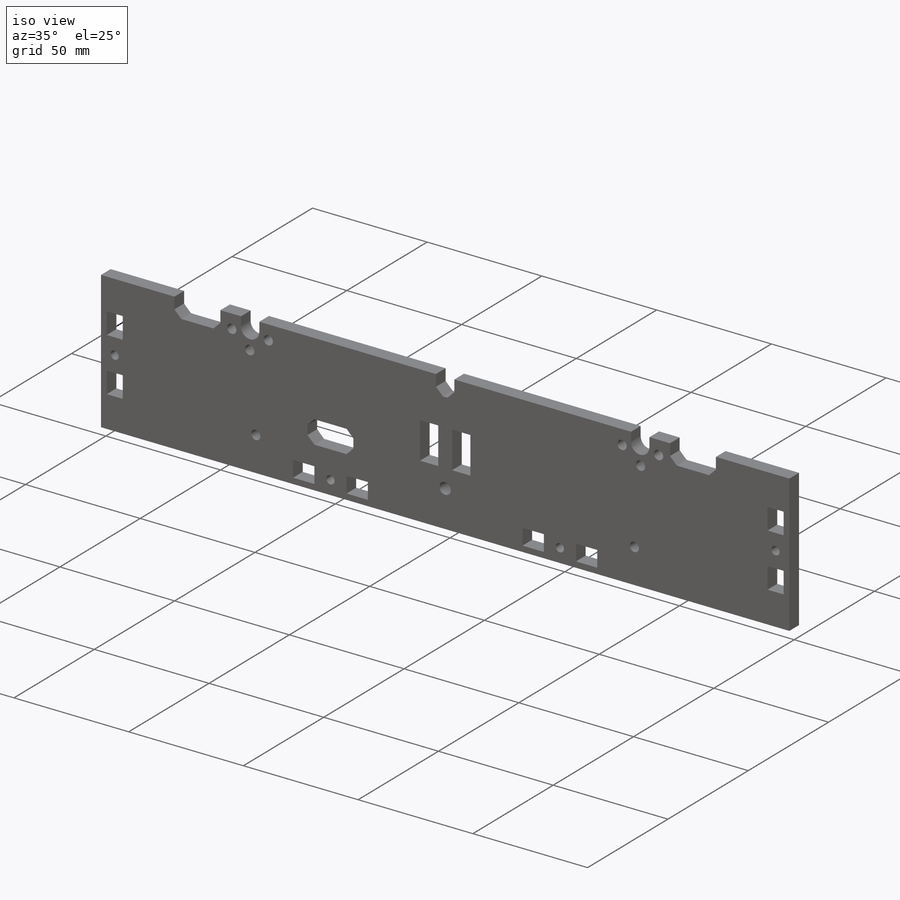
[diagram: iso view]
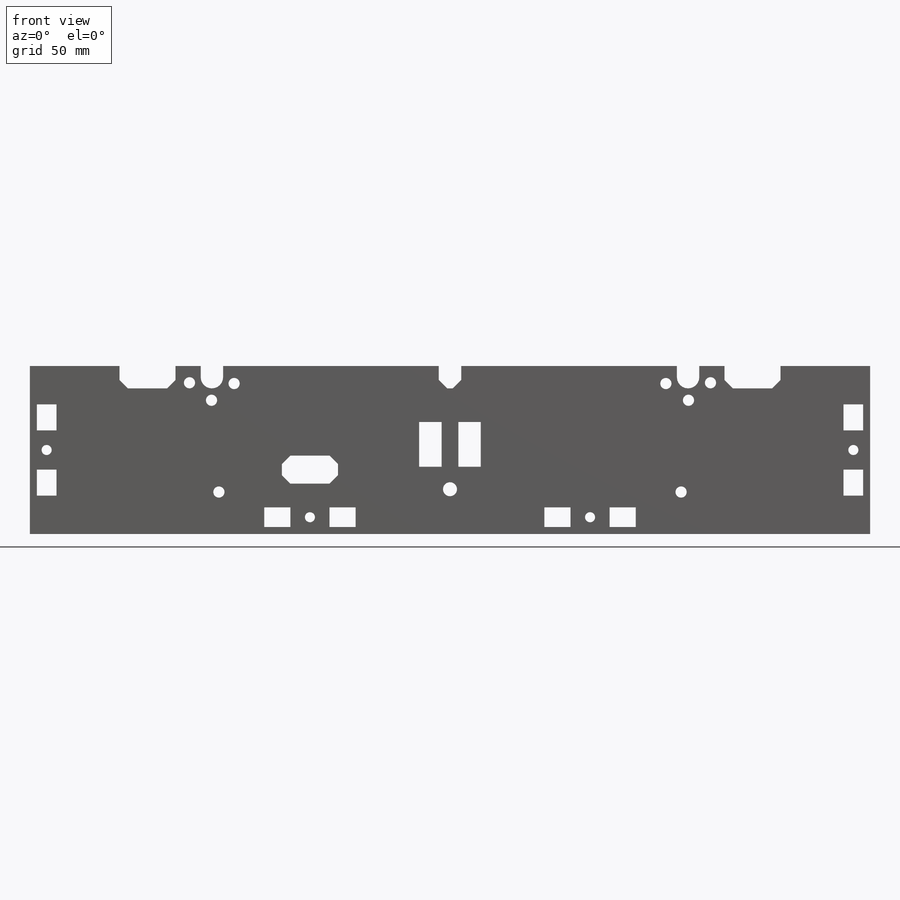
[diagram: front view]
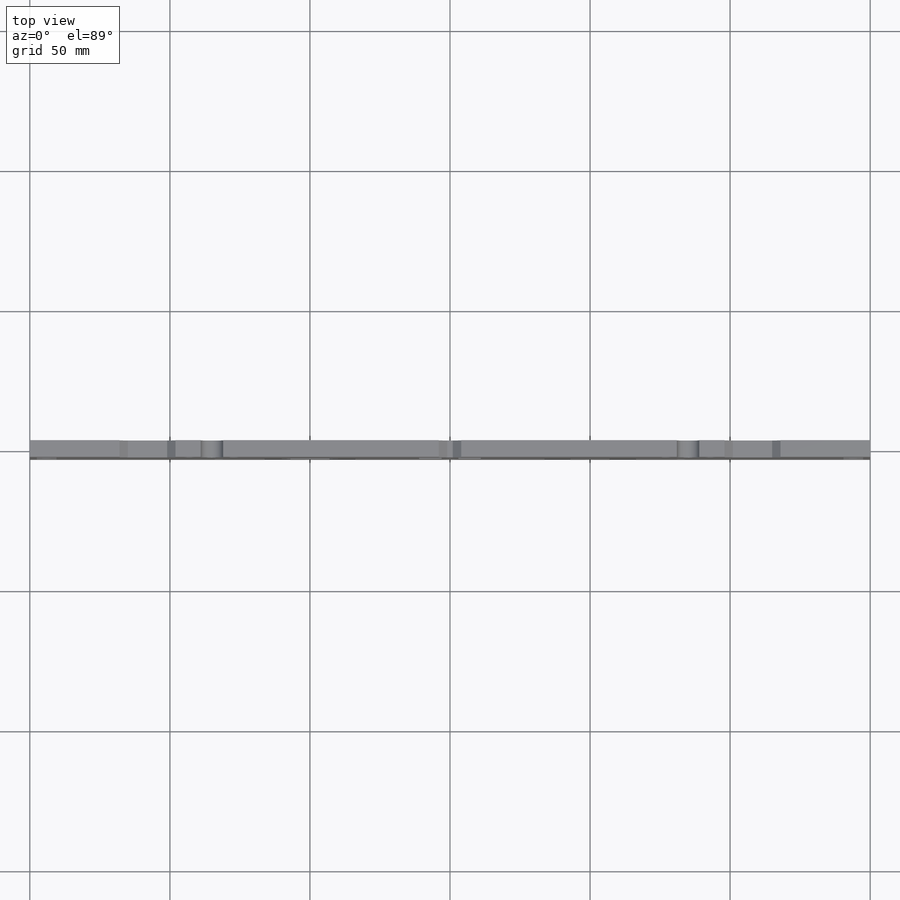
[diagram: top view]
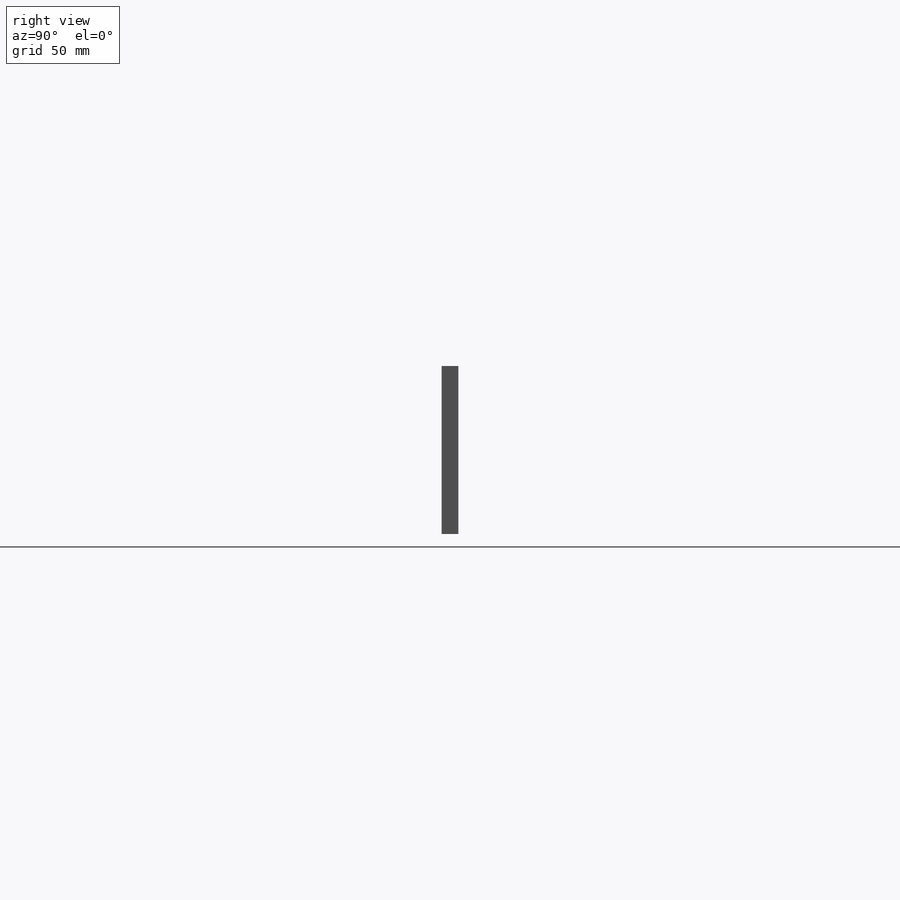
[diagram: right view]
SOLIDWORKS PART (.sldprt)
format: sldprt  version: not decoded by parser v0  size: 699,904 bytes
history: native  units: mm
features: plane x3, sketch x3, cut_extrude x3, pattern_circular x2, material x1, extrude x1, chamfer x1, mirror x1 + 3 further entries (+10 scaffold rows collapsed)
feature tree (28):
  scaffold x10  (default folders/planes/origin — collapsed)
  material  "Matériau <non spécifié>"
  plane  "Plan de face"
  plane  "Plan de dessus"
  plane  "Plan de droite"
  sketch  "Esquisse1"  dims[D1=3.6mm D2=9.3mm D3=7.0mm D4=7.0mm]
  sketch  "Bloc-attache-femelle-5"  dims[c1.D9=8.4mm c1.D13=4.0mm c1.D1=147.0mm c1.D2=60.0mm c1.D3=29.0mm c1.D4=296.0mm c2.D3=6.0mm c2.D4=284.0mm c2.D5=284.0mm c3.D4=6.0mm c3.D5=85.0mm c3.D6=8.0mm c3.D7=30.0mm c3.D8=20.0mm c3.D17=3.0mm c3.D11=3.0mm c3.D10=63.0mm c3.D14=8.0mm c3.D15=4.0mm c4.D10=3.0mm c4.D3=144.0mm c4.D5=50.0mm c4.D16=6.0mm c5.D3=300.0mm c5.D4=6.0mm c5.D7=8.0mm c5.D9=23.0mm c5.D10=9.5mm c6.D4=10.0mm c6.D10=10.0mm c6.D11=220.0mm c6.D12=8.0mm c6.D9=23.0mm c6.D14=8.0mm c7.D4=6.0mm c7.D10=6.0mm c7.D15=2.5mm c7.D11=170.0mm]
  extrude  "Boss.-Extru.1"  Depth=6mm
  pattern_circular  "Répétition circulaire1"  Count=3 Angle=75deg
  chamfer  "Chanfrein1"  Distance=3mm Angle=45deg
  mirror  "Symétrie2"
  "Esquisse2"
  cut_extrude  "idler"  [1 undecoded]
  "Esquisse3"
  sketch  "Bloc-cable-hole-1"
  pattern_circular  "Bloc-cable-hole"  Angle=90deg  [1 undecoded]
  cut_extrude  "screen"  [1 undecoded]
  "Esquisse4"
  cut_extrude  "motor"  [1 undecoded]
decode coverage: 6 of 11 modeling features carry decoded parameters; 3 rows unclassified (native names shown)
note: 4 parameter values undecoded
summary: no parameter record found for 3 features
note: suppression state not decoded; provenance and decode notes live in map.json
